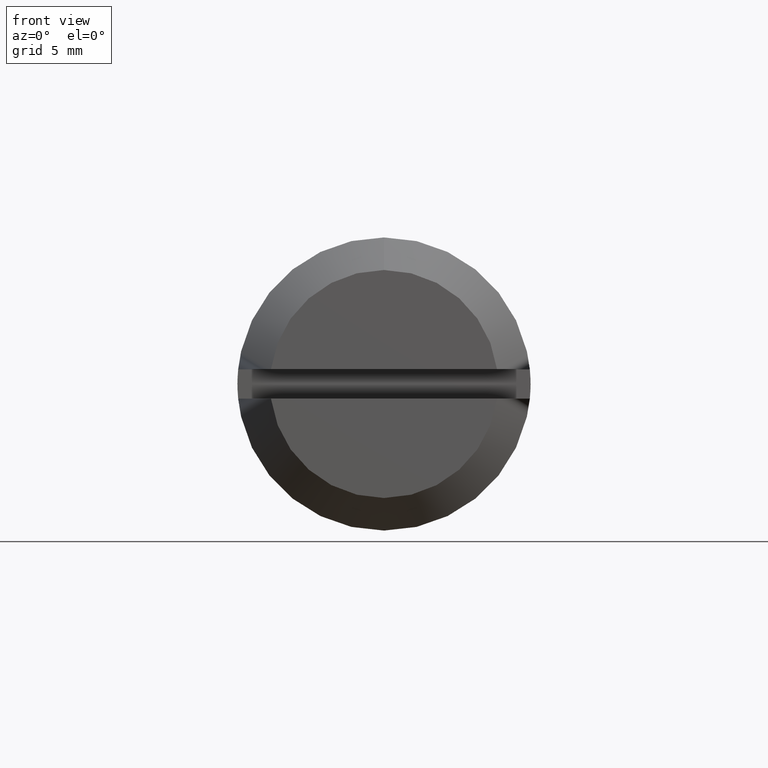
[diagram: clean part render]
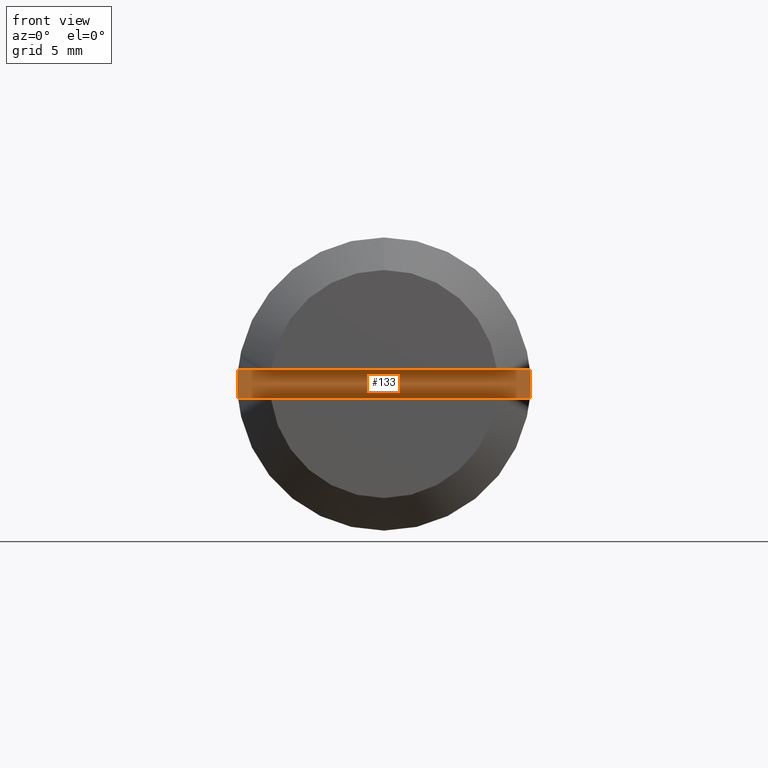
[diagram: same view with one face highlighted and labeled with its STEP entity id]
A machine part, front view. The second image highlights one B-rep face of the part: STEP entity #133.
In plain terms, the highlighted planar face has unit normal (0, -1, 0).
Its self-contained STEP definition (entity closure, byte-faithful):
#133=ADVANCED_FACE('',(#367),#366,.T.);
#366=PLANE('',#689);
#367=FACE_OUTER_BOUND('',#690,.T.);
#686=CARTESIAN_POINT('',(-1.00000000000E+01,-1.08542890185E+01,-1.08000000000E+00));
#687=DIRECTION('',(-1.00000000000E+00,0.00000000000E+00,0.00000000000E+00));
#688=DIRECTION('',(0.00000000000E+00,0.00000000000E+00,1.00000000000E+00));
#689=AXIS2_PLACEMENT_3D('',#686,#687,#688);
#690=EDGE_LOOP('',(#942,#943,#944,#945));
#942=ORIENTED_EDGE('',*,*,#1088,.F.);
#943=ORIENTED_EDGE('',*,*,#1085,.F.);
#944=ORIENTED_EDGE('',*,*,#1089,.F.);
#945=ORIENTED_EDGE('',*,*,#1090,.T.);
#1085=EDGE_CURVE('',#1490,#1498,#1499,.T.);
#1088=EDGE_CURVE('',#1498,#1518,#1519,.T.);
#1089=EDGE_CURVE('',#1525,#1490,#1526,.T.);
#1090=EDGE_CURVE('',#1525,#1518,#1532,.T.);
#1490=VERTEX_POINT('',#2011);
#1498=VERTEX_POINT('',#2017);
#1499=LINE('',#2018,#2019);
#1518=VERTEX_POINT('',#2029);
#1519=CIRCLE('',#2033,8.99990000000E+00);
#1525=VERTEX_POINT('',#2034);
#1526=CIRCLE('',#2038,8.99990000000E+00);
#1532=LINE('',#2039,#2040);
#2011=CARTESIAN_POINT('',(-1.00000000000E+01,8.95478643017E+00,9.00000000000E-01));
#2017=CARTESIAN_POINT('',(-1.00000000000E+01,-8.95478643017E+00,9.00000000000E-01));
#2018=CARTESIAN_POINT('',(-1.00000000000E+01,8.95478643017E+00,9.00000000000E-01));
#2019=VECTOR('',#2020,1.79095728603E+01);
#2020=DIRECTION('',(0.00000000000E+00,-1.00000000000E+00,0.00000000000E+00));
#2029=CARTESIAN_POINT('',(-1.00000000000E+01,-8.95478643017E+00,-9.00000000000E-01));
#2030=CARTESIAN_POINT('',(-1.00000000000E+01,0.00000000000E+00,0.00000000000E+00));
#2031=DIRECTION('',(1.00000000000E+00,0.00000000000E+00,-0.00000000000E+00));
#2032=DIRECTION('',(-0.00000000000E+00,-0.00000000000E+00,-1.00000000000E+00));
#2033=AXIS2_PLACEMENT_3D('',#2030,#2031,#2032);
#2034=CARTESIAN_POINT('',(-1.00000000000E+01,8.95478643017E+00,-9.00000000000E-01));
#2035=CARTESIAN_POINT('',(-1.00000000000E+01,0.00000000000E+00,0.00000000000E+00));
#2036=DIRECTION('',(1.00000000000E+00,0.00000000000E+00,-0.00000000000E+00));
#2037=DIRECTION('',(-0.00000000000E+00,-0.00000000000E+00,-1.00000000000E+00));
#2038=AXIS2_PLACEMENT_3D('',#2035,#2036,#2037);
#2039=CARTESIAN_POINT('',(-1.00000000000E+01,8.95478643017E+00,-9.00000000000E-01));
#2040=VECTOR('',#2041,1.79095728603E+01);
#2041=DIRECTION('',(0.00000000000E+00,-1.00000000000E+00,0.00000000000E+00));